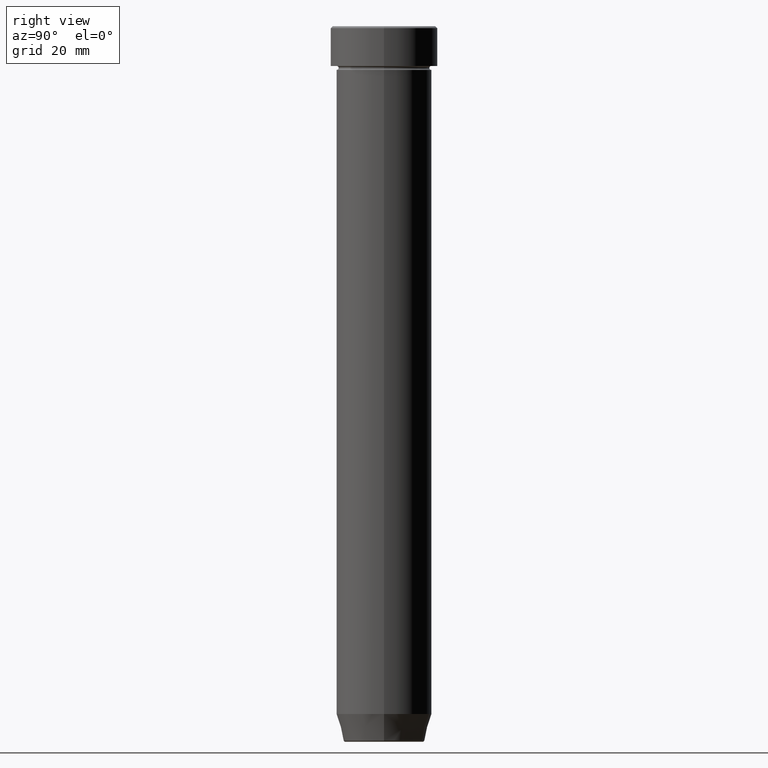
[diagram: clean part render]
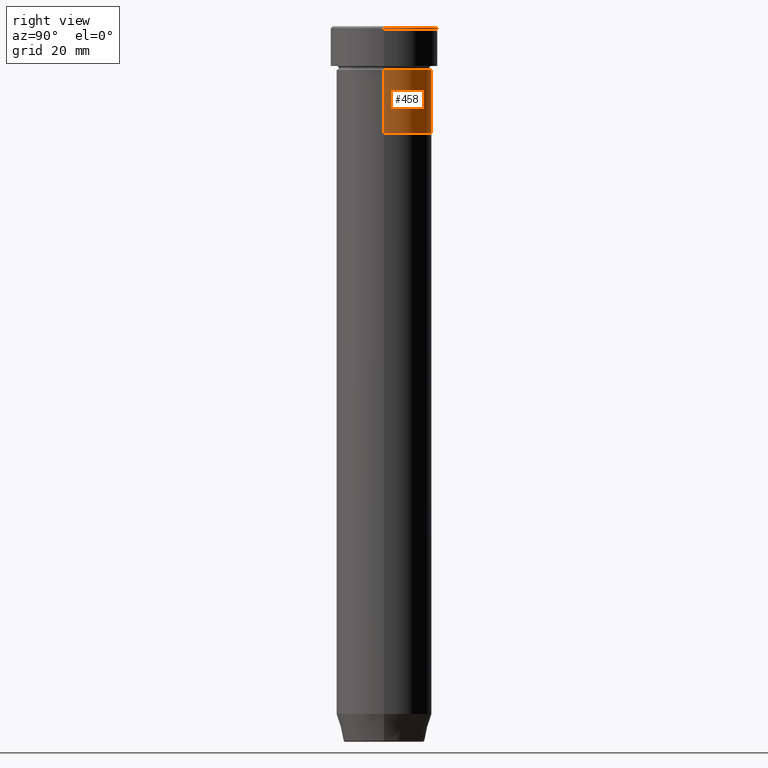
[diagram: same view with one face highlighted and labeled with its STEP entity id]
A machine part, right view. The second image highlights one B-rep face of the part: STEP entity #458.
In plain terms, the highlighted cylindrical surface (partial cylindrical patch) has radius 12 mm, axis along (-0, -0, 1).
Its self-contained STEP definition (entity closure, byte-faithful):
#9 = DIRECTION ( 'NONE',  ( 1.000000000000000000, 0.000000000000000000, 0.000000000000000000 ) ) ;
#15 = DIRECTION ( 'NONE',  ( 1.000000000000000000, 0.000000000000000000, 0.000000000000000000 ) ) ;
#27 = DIRECTION ( 'NONE',  ( 1.000000000000000000, 0.000000000000000000, 0.000000000000000000 ) ) ;
#61 = CARTESIAN_POINT ( 'NONE',  ( 12.00000000000000000, 0.000000000000000000, -27.00000000000000000 ) ) ;
#106 = CYLINDRICAL_SURFACE ( 'NONE', #551, 12.00000000000000000 ) ;
#112 = LINE ( 'NONE', #509, #431 ) ;
#121 = FACE_OUTER_BOUND ( 'NONE', #428, .T. ) ;
#122 = VERTEX_POINT ( 'NONE', #199 ) ;
#130 = CIRCLE ( 'NONE', #349, 12.00000000000000000 ) ;
#131 = ORIENTED_EDGE ( 'NONE', *, *, #263, .T. ) ;
#164 = CARTESIAN_POINT ( 'NONE',  ( 0.000000000000000000, 0.000000000000000000, -27.00000000000000000 ) ) ;
#199 = CARTESIAN_POINT ( 'NONE',  ( -12.00000000000000000, 1.469576158976823947E-15, -27.00000000000000000 ) ) ;
#212 = CARTESIAN_POINT ( 'NONE',  ( 12.00000000000000000, 0.000000000000000000, -11.00000000000000000 ) ) ;
#230 = LINE ( 'NONE', #574, #445 ) ;
#234 = VERTEX_POINT ( 'NONE', #61 ) ;
#263 = EDGE_CURVE ( 'NONE', #234, #122, #130, .T. ) ;
#279 = EDGE_CURVE ( 'NONE', #234, #482, #112, .T. ) ;
#289 = CIRCLE ( 'NONE', #310, 12.00000000000000000 ) ;
#291 = DIRECTION ( 'NONE',  ( -0.000000000000000000, -0.000000000000000000, 1.000000000000000000 ) ) ;
#310 = AXIS2_PLACEMENT_3D ( 'NONE', #571, #520, #27 ) ;
#345 = ORIENTED_EDGE ( 'NONE', *, *, #373, .F. ) ;
#349 = AXIS2_PLACEMENT_3D ( 'NONE', #164, #557, #9 ) ;
#373 = EDGE_CURVE ( 'NONE', #482, #493, #289, .T. ) ;
#380 = DIRECTION ( 'NONE',  ( -0.000000000000000000, -0.000000000000000000, 1.000000000000000000 ) ) ;
#397 = EDGE_CURVE ( 'NONE', #122, #493, #230, .T. ) ;
#419 = CARTESIAN_POINT ( 'NONE',  ( -12.00000000000000000, 1.469576158976823947E-15, -11.00000000000000000 ) ) ;
#428 = EDGE_LOOP ( 'NONE', ( #131, #560, #345, #439 ) ) ;
#431 = VECTOR ( 'NONE', #291, 1000.000000000000000 ) ;
#439 = ORIENTED_EDGE ( 'NONE', *, *, #279, .F. ) ;
#445 = VECTOR ( 'NONE', #537, 1000.000000000000000 ) ;
#458 = ADVANCED_FACE ( 'NONE', ( #121 ), #106, .T. ) ;
#482 = VERTEX_POINT ( 'NONE', #212 ) ;
#493 = VERTEX_POINT ( 'NONE', #419 ) ;
#509 = CARTESIAN_POINT ( 'NONE',  ( 12.00000000000000000, 0.000000000000000000, 0.000000000000000000 ) ) ;
#520 = DIRECTION ( 'NONE',  ( -0.000000000000000000, -0.000000000000000000, 1.000000000000000000 ) ) ;
#537 = DIRECTION ( 'NONE',  ( -0.000000000000000000, -0.000000000000000000, 1.000000000000000000 ) ) ;
#548 = CARTESIAN_POINT ( 'NONE',  ( 0.000000000000000000, 0.000000000000000000, 0.000000000000000000 ) ) ;
#551 = AXIS2_PLACEMENT_3D ( 'NONE', #548, #380, #15 ) ;
#557 = DIRECTION ( 'NONE',  ( -0.000000000000000000, -0.000000000000000000, 1.000000000000000000 ) ) ;
#560 = ORIENTED_EDGE ( 'NONE', *, *, #397, .T. ) ;
#571 = CARTESIAN_POINT ( 'NONE',  ( 0.000000000000000000, 0.000000000000000000, -11.00000000000000000 ) ) ;
#574 = CARTESIAN_POINT ( 'NONE',  ( -12.00000000000000000, 1.469576158976823947E-15, 0.000000000000000000 ) ) ;